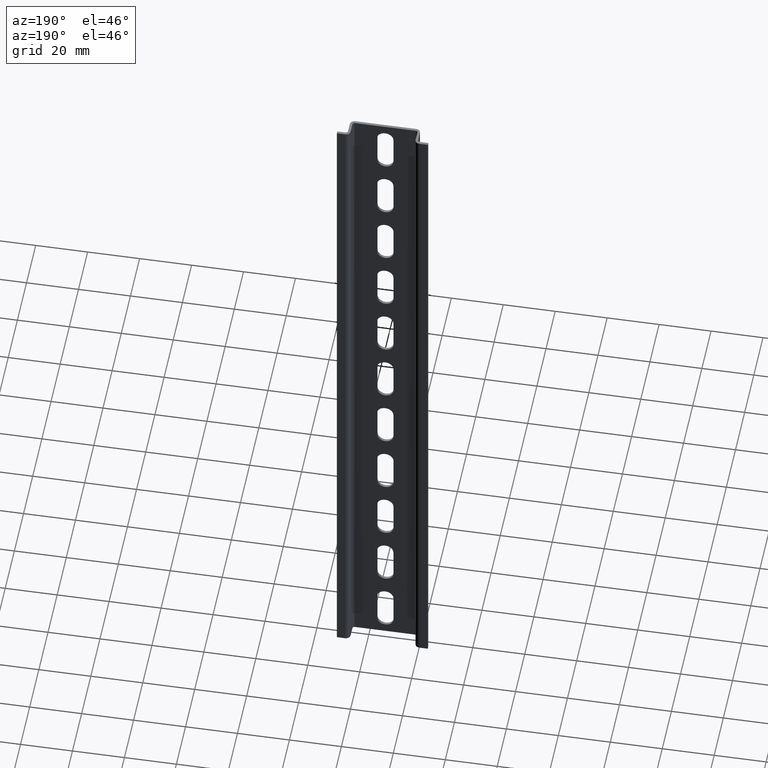
[diagram: clean part render]
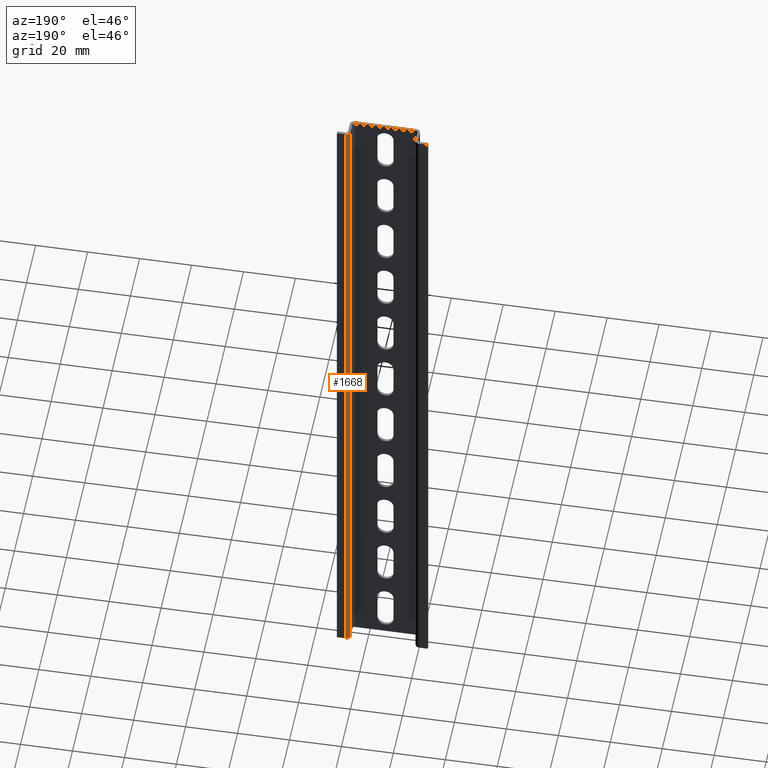
[diagram: same view with one face highlighted and labeled with its STEP entity id]
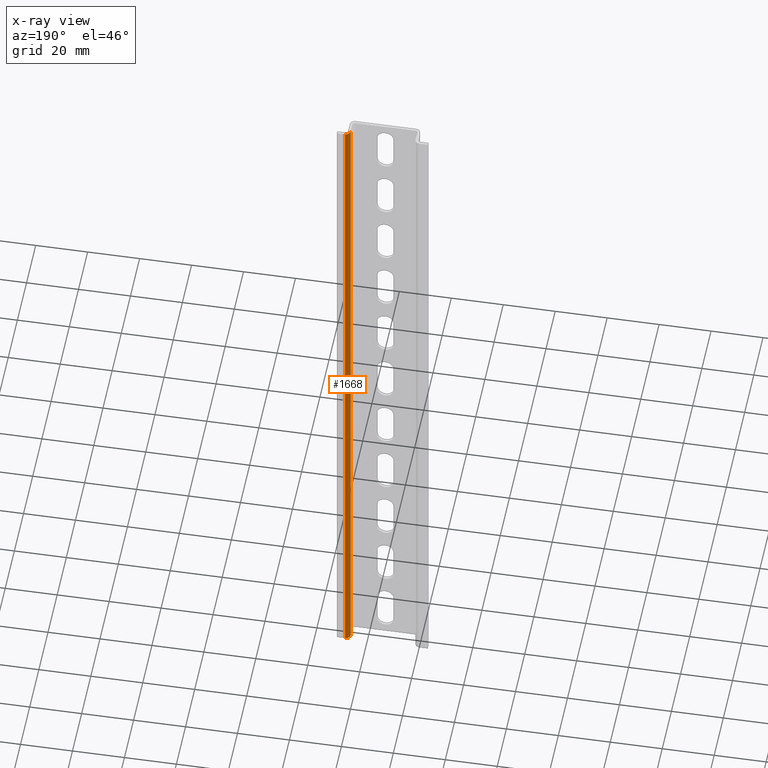
[diagram: x-ray of the same camera — body ghosted, the highlighted face saturated]
A machine part, auxiliary view. The second image highlights one B-rep face of the part: STEP entity #1668.
The next image is the same camera in x-ray: the body ghosted, the highlighted face saturated — about 0% of this face is hidden behind the body in this view.
In plain terms, the highlighted cylindrical surface (edge-blend (fillet) strip) has radius 1.8 mm, axis along (0, 0, 1).
Its self-contained STEP definition (entity closure, byte-faithful):
#6 = LINE ( 'NONE', #1453, #678 ) ;
#8 = CARTESIAN_POINT ( 'NONE',  ( 26.00000000000000000, 5.700000000000000178, 275.0000000000000000 ) ) ;
#271 = FACE_OUTER_BOUND ( 'NONE', #1292, .T. ) ;
#273 = EDGE_CURVE ( 'NONE', #1885, #1599, #1749, .T. ) ;
#311 = DIRECTION ( 'NONE',  ( 0.000000000000000000, -4.440892098500999885E-16, -1.000000000000000000 ) ) ;
#340 = AXIS2_PLACEMENT_3D ( 'NONE', #1323, #1878, #995 ) ;
#375 = CIRCLE ( 'NONE', #1997, 1.800000000000000044 ) ;
#383 = ORIENTED_EDGE ( 'NONE', *, *, #1237, .F. ) ;
#517 = DIRECTION ( 'NONE',  ( 0.000000000000000000, -4.440892098500999885E-16, -1.000000000000000000 ) ) ;
#539 = DIRECTION ( 'NONE',  ( 0.000000000000000000, -1.000000000000000000, 4.440892098500998898E-16 ) ) ;
#678 = VECTOR ( 'NONE', #1444, 1000.000000000000000 ) ;
#717 = CARTESIAN_POINT ( 'NONE',  ( 27.79999999999999716, 5.700000000000000178, 275.0000000000000000 ) ) ;
#800 = ORIENTED_EDGE ( 'NONE', *, *, #1422, .F. ) ;
#913 = ORIENTED_EDGE ( 'NONE', *, *, #1400, .T. ) ;
#957 = CARTESIAN_POINT ( 'NONE',  ( 27.79999999999999716, 7.500000000000000000, -3.330669073874999855E-15 ) ) ;
#995 = DIRECTION ( 'NONE',  ( -1.000000000000000000, 0.000000000000000000, 0.000000000000000000 ) ) ;
#1086 = CARTESIAN_POINT ( 'NONE',  ( 27.79999999999999716, 5.700000000000000178, -2.531308496145000031E-15 ) ) ;
#1139 = CYLINDRICAL_SURFACE ( 'NONE', #340, 1.799999999999999600 ) ;
#1199 = CARTESIAN_POINT ( 'NONE',  ( 27.79999999999999716, 7.500000000000000000, 275.0000000000000000 ) ) ;
#1237 = EDGE_CURVE ( 'NONE', #2233, #1346, #6, .T. ) ;
#1285 = AXIS2_PLACEMENT_3D ( 'NONE', #1086, #311, #539 ) ;
#1292 = EDGE_LOOP ( 'NONE', ( #1333, #913, #383, #800 ) ) ;
#1323 = CARTESIAN_POINT ( 'NONE',  ( 27.79999999999999716, 5.700000000000000178, -2.531308496145000031E-15 ) ) ;
#1333 = ORIENTED_EDGE ( 'NONE', *, *, #273, .T. ) ;
#1346 = VERTEX_POINT ( 'NONE', #1199 ) ;
#1400 = EDGE_CURVE ( 'NONE', #1599, #1346, #375, .T. ) ;
#1422 = EDGE_CURVE ( 'NONE', #1885, #2233, #2289, .T. ) ;
#1444 = DIRECTION ( 'NONE',  ( 0.000000000000000000, 4.440892098500999885E-16, 1.000000000000000000 ) ) ;
#1453 = CARTESIAN_POINT ( 'NONE',  ( 27.79999999999999716, 7.500000000000000000, -3.330669073874999855E-15 ) ) ;
#1570 = VECTOR ( 'NONE', #1576, 1000.000000000000000 ) ;
#1576 = DIRECTION ( 'NONE',  ( 0.000000000000000000, 4.440892098500999885E-16, 1.000000000000000000 ) ) ;
#1599 = VERTEX_POINT ( 'NONE', #8 ) ;
#1668 = ADVANCED_FACE ( 'NONE', ( #271 ), #1139, .T. ) ;
#1749 = LINE ( 'NONE', #2267, #1570 ) ;
#1878 = DIRECTION ( 'NONE',  ( 0.000000000000000000, 4.440892098500999885E-16, 1.000000000000000000 ) ) ;
#1885 = VERTEX_POINT ( 'NONE', #1924 ) ;
#1924 = CARTESIAN_POINT ( 'NONE',  ( 26.00000000000000000, 5.700000000000000178, -2.531308496145000031E-15 ) ) ;
#1997 = AXIS2_PLACEMENT_3D ( 'NONE', #717, #517, #2118 ) ;
#2118 = DIRECTION ( 'NONE',  ( 0.000000000000000000, -1.000000000000000000, 0.000000000000000000 ) ) ;
#2233 = VERTEX_POINT ( 'NONE', #957 ) ;
#2267 = CARTESIAN_POINT ( 'NONE',  ( 26.00000000000000000, 5.700000000000000178, -2.531308496145000031E-15 ) ) ;
#2289 = CIRCLE ( 'NONE', #1285, 1.800000000000000044 ) ;